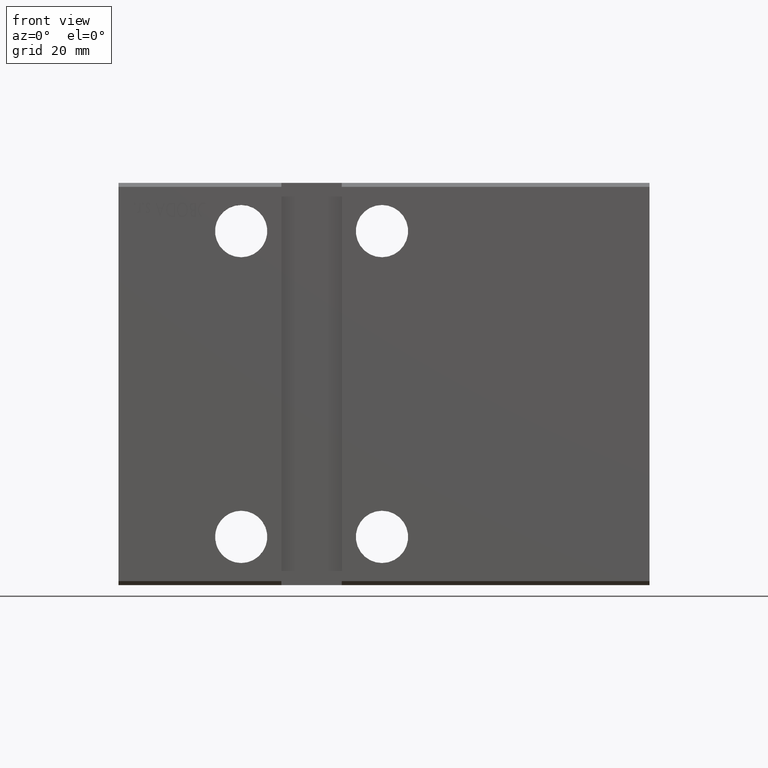
[diagram: clean part render]
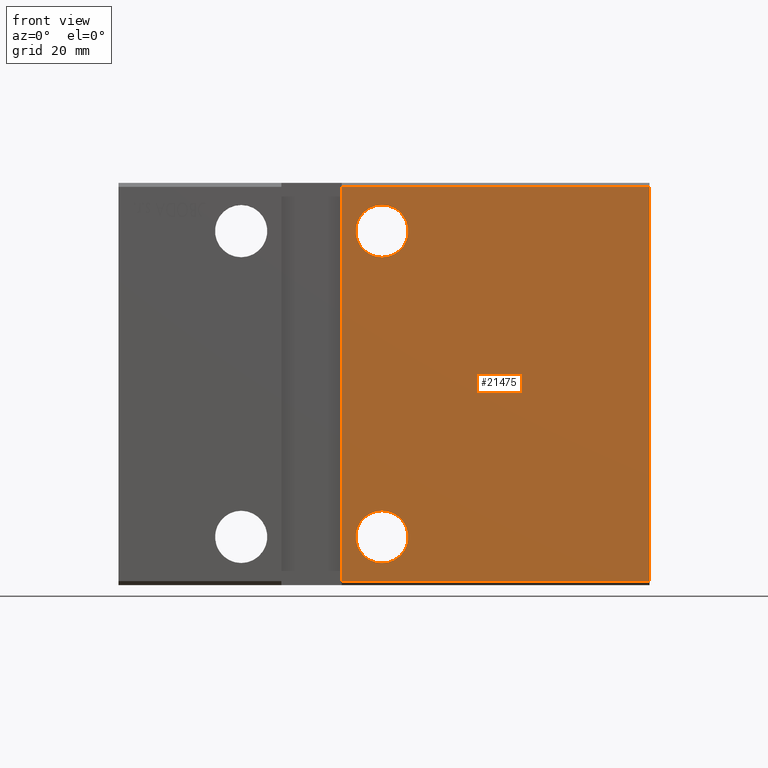
[diagram: same view with one face highlighted and labeled with its STEP entity id]
A machine part, front view. The second image highlights one B-rep face of the part: STEP entity #21475.
In plain terms, the highlighted planar face has unit normal (-0, 1, 0).
Its self-contained STEP definition (entity closure, byte-faithful):
#777 = AXIS2_PLACEMENT_3D ( 'NONE', #31827, #21461, #34116 ) ;
#962 = VERTEX_POINT ( 'NONE', #27637 ) ;
#1150 = DIRECTION ( 'NONE',  ( -0.000000000000000000, 1.000000000000000000, 0.000000000000000000 ) ) ;
#1299 = CARTESIAN_POINT ( 'NONE',  ( 65.50000000000000000, -37.50000000000001421, 44.50000000000000000 ) ) ;
#1822 = CIRCLE ( 'NONE', #17705, 6.499999999999999112 ) ;
#2069 = CIRCLE ( 'NONE', #31862, 6.499999999999999112 ) ;
#2586 = LINE ( 'NONE', #25380, #36700 ) ;
#5916 = LINE ( 'NONE', #15658, #10682 ) ;
#6019 = VERTEX_POINT ( 'NONE', #1299 ) ;
#6451 = DIRECTION ( 'NONE',  ( -0.000000000000000000, 1.000000000000000000, 0.000000000000000000 ) ) ;
#6889 = ORIENTED_EDGE ( 'NONE', *, *, #39475, .F. ) ;
#6997 = CARTESIAN_POINT ( 'NONE',  ( 65.50000000000001421, -37.50000000000001421, -38.00000000000000000 ) ) ;
#7288 = ORIENTED_EDGE ( 'NONE', *, *, #7719, .T. ) ;
#7719 = EDGE_CURVE ( 'NONE', #962, #8062, #20423, .T. ) ;
#7727 = PLANE ( 'NONE',  #36817 ) ;
#7900 = EDGE_LOOP ( 'NONE', ( #35339, #6889 ) ) ;
#8062 = VERTEX_POINT ( 'NONE', #11705 ) ;
#9427 = CIRCLE ( 'NONE', #777, 6.499999999999999112 ) ;
#10682 = VECTOR ( 'NONE', #28298, 1000.000000000000000 ) ;
#11705 = CARTESIAN_POINT ( 'NONE',  ( 55.50000000000000000, -37.50000000000001421, 48.99999999999998579 ) ) ;
#11755 = DIRECTION ( 'NONE',  ( 0.000000000000000000, -1.000000000000000000, -0.000000000000000000 ) ) ;
#12893 = DIRECTION ( 'NONE',  ( 0.000000000000000000, 0.000000000000000000, 1.000000000000000000 ) ) ;
#14514 = ORIENTED_EDGE ( 'NONE', *, *, #38191, .T. ) ;
#15097 = AXIS2_PLACEMENT_3D ( 'NONE', #34844, #6451, #12893 ) ;
#15319 = EDGE_CURVE ( 'NONE', #22825, #23065, #2586, .T. ) ;
#15658 = CARTESIAN_POINT ( 'NONE',  ( 55.50000000000000000, -37.50000000000001421, 49.99999999999998579 ) ) ;
#15844 = VERTEX_POINT ( 'NONE', #21348 ) ;
#16594 = ORIENTED_EDGE ( 'NONE', *, *, #37694, .F. ) ;
#16601 = VERTEX_POINT ( 'NONE', #29065 ) ;
#16640 = EDGE_LOOP ( 'NONE', ( #7288, #16594, #37165, #26767 ) ) ;
#17705 = AXIS2_PLACEMENT_3D ( 'NONE', #27900, #11755, #18150 ) ;
#18150 = DIRECTION ( 'NONE',  ( 0.000000000000000000, 0.000000000000000000, 1.000000000000000000 ) ) ;
#18665 = CARTESIAN_POINT ( 'NONE',  ( 55.50000000000000711, -37.50000000000001421, -48.99999999999997158 ) ) ;
#19482 = EDGE_LOOP ( 'NONE', ( #28570, #14514 ) ) ;
#19577 = VECTOR ( 'NONE', #29881, 1000.000000000000000 ) ;
#19866 = EDGE_CURVE ( 'NONE', #962, #22825, #32595, .T. ) ;
#20423 = LINE ( 'NONE', #32342, #25969 ) ;
#20739 = CARTESIAN_POINT ( 'NONE',  ( 132.0000000000000000, -37.50000000000001421, 48.99999999999998579 ) ) ;
#21348 = CARTESIAN_POINT ( 'NONE',  ( 65.50000000000001421, -37.50000000000001421, -31.50000000000000000 ) ) ;
#21461 = DIRECTION ( 'NONE',  ( 0.000000000000000000, -1.000000000000000000, -0.000000000000000000 ) ) ;
#21475 = ADVANCED_FACE ( 'NONE', ( #26370, #39020, #29691 ), #7727, .F. ) ;
#22825 = VERTEX_POINT ( 'NONE', #34272 ) ;
#23065 = VERTEX_POINT ( 'NONE', #18665 ) ;
#24083 = DIRECTION ( 'NONE',  ( -0.000000000000000000, 1.000000000000000000, 0.000000000000000000 ) ) ;
#24707 = VERTEX_POINT ( 'NONE', #29489 ) ;
#25380 = CARTESIAN_POINT ( 'NONE',  ( 132.0000000000000000, -37.50000000000001421, -49.00000000000000000 ) ) ;
#25969 = VECTOR ( 'NONE', #39512, 1000.000000000000000 ) ;
#26319 = CIRCLE ( 'NONE', #15097, 6.499999999999999112 ) ;
#26370 = FACE_BOUND ( 'NONE', #19482, .T. ) ;
#26429 = DIRECTION ( 'NONE',  ( 0.000000000000000000, 0.000000000000000000, 1.000000000000000000 ) ) ;
#26767 = ORIENTED_EDGE ( 'NONE', *, *, #19866, .F. ) ;
#26982 = DIRECTION ( 'NONE',  ( 0.000000000000000000, -0.000000000000000000, 1.000000000000000000 ) ) ;
#27595 = EDGE_CURVE ( 'NONE', #24707, #6019, #1822, .T. ) ;
#27637 = CARTESIAN_POINT ( 'NONE',  ( 132.0000000000000000, -37.50000000000001421, 48.99999999999998579 ) ) ;
#27900 = CARTESIAN_POINT ( 'NONE',  ( 65.50000000000000000, -37.50000000000001421, 38.00000000000000000 ) ) ;
#28298 = DIRECTION ( 'NONE',  ( -6.938893903907229610E-17, -0.000000000000000000, 1.000000000000000000 ) ) ;
#28359 = EDGE_CURVE ( 'NONE', #16601, #15844, #26319, .T. ) ;
#28570 = ORIENTED_EDGE ( 'NONE', *, *, #28359, .T. ) ;
#29065 = CARTESIAN_POINT ( 'NONE',  ( 65.50000000000001421, -37.50000000000001421, -44.50000000000000000 ) ) ;
#29489 = CARTESIAN_POINT ( 'NONE',  ( 65.50000000000000000, -37.50000000000001421, 31.50000000000000000 ) ) ;
#29691 = FACE_BOUND ( 'NONE', #7900, .T. ) ;
#29881 = DIRECTION ( 'NONE',  ( 0.000000000000000000, 0.000000000000000000, -1.000000000000000000 ) ) ;
#31827 = CARTESIAN_POINT ( 'NONE',  ( 65.50000000000000000, -37.50000000000001421, 38.00000000000000000 ) ) ;
#31862 = AXIS2_PLACEMENT_3D ( 'NONE', #6997, #1150, #26429 ) ;
#32342 = CARTESIAN_POINT ( 'NONE',  ( 132.0000000000000000, -37.50000000000001421, 48.99999999999998579 ) ) ;
#32595 = LINE ( 'NONE', #20739, #19577 ) ;
#33006 = CARTESIAN_POINT ( 'NONE',  ( 132.0000000000000000, -37.50000000000001421, 48.99999999999998579 ) ) ;
#34116 = DIRECTION ( 'NONE',  ( 0.000000000000000000, 0.000000000000000000, 1.000000000000000000 ) ) ;
#34272 = CARTESIAN_POINT ( 'NONE',  ( 132.0000000000000000, -37.50000000000001421, -49.00000000000000000 ) ) ;
#34844 = CARTESIAN_POINT ( 'NONE',  ( 65.50000000000001421, -37.50000000000001421, -38.00000000000000000 ) ) ;
#35339 = ORIENTED_EDGE ( 'NONE', *, *, #27595, .F. ) ;
#36700 = VECTOR ( 'NONE', #40519, 1000.000000000000000 ) ;
#36817 = AXIS2_PLACEMENT_3D ( 'NONE', #33006, #24083, #26982 ) ;
#37165 = ORIENTED_EDGE ( 'NONE', *, *, #15319, .F. ) ;
#37694 = EDGE_CURVE ( 'NONE', #23065, #8062, #5916, .T. ) ;
#38191 = EDGE_CURVE ( 'NONE', #15844, #16601, #2069, .T. ) ;
#39020 = FACE_OUTER_BOUND ( 'NONE', #16640, .T. ) ;
#39475 = EDGE_CURVE ( 'NONE', #6019, #24707, #9427, .T. ) ;
#39512 = DIRECTION ( 'NONE',  ( -1.000000000000000000, -0.000000000000000000, -0.000000000000000000 ) ) ;
#40519 = DIRECTION ( 'NONE',  ( -1.000000000000000000, -0.000000000000000000, -0.000000000000000000 ) ) ;